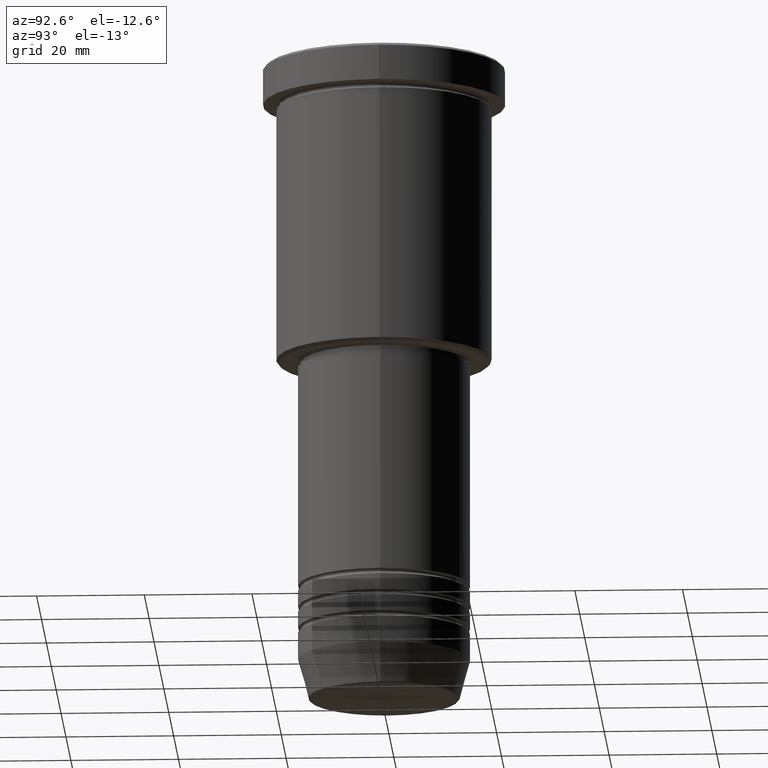
[diagram: clean part render]
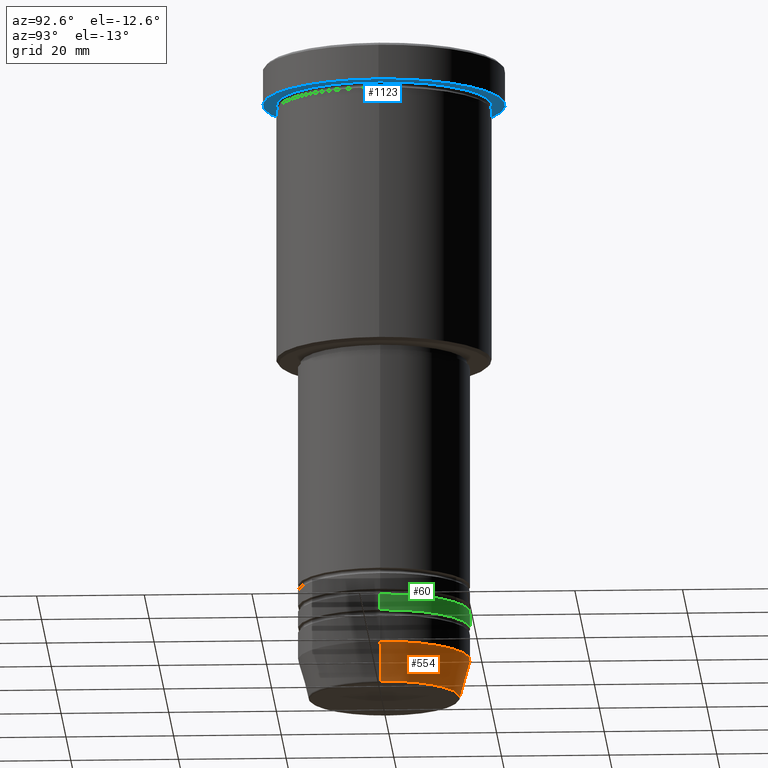
[diagram: same view with three faces highlighted in distinct colors, each labeled with its STEP entity id]
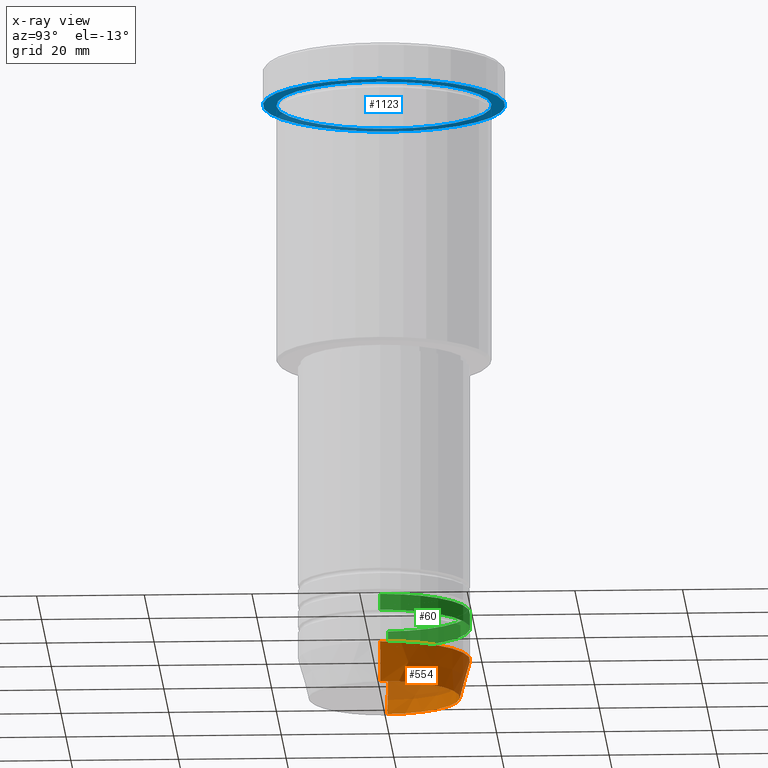
[diagram: x-ray of the same camera — body ghosted, the three highlighted faces saturated]
A machine part, auxiliary view with three faces highlighted in distinct colors.
The next image is the same camera in x-ray (body ghosted, the three faces saturated) — at least one of them is partly hidden behind the body in this view.
Their STEP definitions:

[orange] entity #554 — the highlighted conical surface has half-angle 15 deg.
#25 = CARTESIAN_POINT ( 'NONE',  ( 0.000000000000000000, 0.000000000000000000, -112.4999999999999858 ) ) ;
#165 = ORIENTED_EDGE ( 'NONE', *, *, #877, .T. ) ;
#187 = AXIS2_PLACEMENT_3D ( 'NONE', #25, #544, #753 ) ;
#218 = EDGE_CURVE ( 'NONE', #585, #610, #954, .T. ) ;
#225 = CARTESIAN_POINT ( 'NONE',  ( -16.00000000000000000, 1.959434878635765131E-15, -112.4999999999999858 ) ) ;
#233 = ORIENTED_EDGE ( 'NONE', *, *, #629, .F. ) ;
#275 = CARTESIAN_POINT ( 'NONE',  ( -16.00000000000000000, 1.959434878635765131E-15, -112.4999999999999858 ) ) ;
#304 = DIRECTION ( 'NONE',  ( 1.000000000000000000, 0.000000000000000000, 0.000000000000000000 ) ) ;
#345 = FACE_OUTER_BOUND ( 'NONE', #684, .T. ) ;
#396 = DIRECTION ( 'NONE',  ( -0.000000000000000000, -0.000000000000000000, 1.000000000000000000 ) ) ;
#400 = VERTEX_POINT ( 'NONE', #939 ) ;
#413 = CARTESIAN_POINT ( 'NONE',  ( 0.000000000000000000, 0.000000000000000000, -112.4999999999999858 ) ) ;
#423 = DIRECTION ( 'NONE',  ( 1.000000000000000000, 0.000000000000000000, 0.000000000000000000 ) ) ;
#446 = AXIS2_PLACEMENT_3D ( 'NONE', #1013, #396, #304 ) ;
#523 = CARTESIAN_POINT ( 'NONE',  ( 14.08968047592162698, 0.000000000000000000, -119.6294095225512564 ) ) ;
#544 = DIRECTION ( 'NONE',  ( -0.000000000000000000, -0.000000000000000000, 1.000000000000000000 ) ) ;
#554 = ADVANCED_FACE ( 'NONE', ( #345 ), #669, .T. ) ;
#573 = VECTOR ( 'NONE', #1174, 1000.000000000000000 ) ;
#585 = VERTEX_POINT ( 'NONE', #586 ) ;
#586 = CARTESIAN_POINT ( 'NONE',  ( 16.00000000000000000, 0.000000000000000000, -112.4999999999999858 ) ) ;
#610 = VERTEX_POINT ( 'NONE', #225 ) ;
#629 = EDGE_CURVE ( 'NONE', #1000, #585, #914, .T. ) ;
#669 = CONICAL_SURFACE ( 'NONE', #747, 16.00000000000000000, 0.2617993877991500740 ) ;
#684 = EDGE_LOOP ( 'NONE', ( #165, #706, #899, #233 ) ) ;
#686 = DIRECTION ( 'NONE',  ( -0.000000000000000000, -0.000000000000000000, 1.000000000000000000 ) ) ;
#706 = ORIENTED_EDGE ( 'NONE', *, *, #1149, .T. ) ;
#709 = CIRCLE ( 'NONE', #446, 14.08968047592162698 ) ;
#719 = CARTESIAN_POINT ( 'NONE',  ( 16.00000000000000000, 0.000000000000000000, -112.4999999999999858 ) ) ;
#728 = LINE ( 'NONE', #275, #1077 ) ;
#747 = AXIS2_PLACEMENT_3D ( 'NONE', #413, #686, #423 ) ;
#753 = DIRECTION ( 'NONE',  ( 1.000000000000000000, 0.000000000000000000, 0.000000000000000000 ) ) ;
#877 = EDGE_CURVE ( 'NONE', #1000, #400, #709, .T. ) ;
#893 = DIRECTION ( 'NONE',  ( -0.2588190451025213501, 3.169619151431772337E-17, 0.9659258262890680902 ) ) ;
#899 = ORIENTED_EDGE ( 'NONE', *, *, #218, .F. ) ;
#914 = LINE ( 'NONE', #719, #573 ) ;
#939 = CARTESIAN_POINT ( 'NONE',  ( -14.08968047592162698, 1.842461544110201269E-15, -119.6294095225512564 ) ) ;
#954 = CIRCLE ( 'NONE', #187, 16.00000000000000000 ) ;
#1000 = VERTEX_POINT ( 'NONE', #523 ) ;
#1013 = CARTESIAN_POINT ( 'NONE',  ( 0.000000000000000000, 0.000000000000000000, -119.6294095225512564 ) ) ;
#1077 = VECTOR ( 'NONE', #893, 1000.000000000000000 ) ;
#1149 = EDGE_CURVE ( 'NONE', #400, #610, #728, .T. ) ;
#1174 = DIRECTION ( 'NONE',  ( 0.2588190451025213501, 0.000000000000000000, 0.9659258262890680902 ) ) ;

[blue] entity #1123 — the highlighted planar face has unit normal (0, 0, -1).
#47 = DIRECTION ( 'NONE',  ( -0.000000000000000000, -0.000000000000000000, 1.000000000000000000 ) ) ;
#55 = EDGE_LOOP ( 'NONE', ( #194, #1097 ) ) ;
#106 = EDGE_CURVE ( 'NONE', #977, #592, #349, .T. ) ;
#140 = CARTESIAN_POINT ( 'NONE',  ( 0.000000000000000000, 0.000000000000000000, -6.999999999999995559 ) ) ;
#144 = EDGE_CURVE ( 'NONE', #527, #896, #1125, .T. ) ;
#154 = CARTESIAN_POINT ( 'NONE',  ( -20.00000000000000000, 0.000000000000000000, -6.999999999999995559 ) ) ;
#162 = CARTESIAN_POINT ( 'NONE',  ( 0.000000000000000000, 22.50000000000000000, -6.999999999999995559 ) ) ;
#177 = CARTESIAN_POINT ( 'NONE',  ( 0.000000000000000000, 0.000000000000000000, -6.999999999999995559 ) ) ;
#184 = EDGE_CURVE ( 'NONE', #592, #977, #443, .T. ) ;
#194 = ORIENTED_EDGE ( 'NONE', *, *, #184, .F. ) ;
#197 = DIRECTION ( 'NONE',  ( -0.000000000000000000, -0.000000000000000000, 1.000000000000000000 ) ) ;
#201 = CARTESIAN_POINT ( 'NONE',  ( 0.000000000000000000, 0.000000000000000000, -6.999999999999995559 ) ) ;
#295 = DIRECTION ( 'NONE',  ( 1.000000000000000000, 0.000000000000000000, 0.000000000000000000 ) ) ;
#349 = CIRCLE ( 'NONE', #901, 22.50000000000000000 ) ;
#358 = ORIENTED_EDGE ( 'NONE', *, *, #1078, .T. ) ;
#443 = CIRCLE ( 'NONE', #807, 22.50000000000000000 ) ;
#452 = DIRECTION ( 'NONE',  ( -1.000000000000000000, 0.000000000000000000, 0.000000000000000000 ) ) ;
#455 = FACE_BOUND ( 'NONE', #925, .T. ) ;
#474 = DIRECTION ( 'NONE',  ( -0.000000000000000000, -0.000000000000000000, 1.000000000000000000 ) ) ;
#487 = ORIENTED_EDGE ( 'NONE', *, *, #144, .T. ) ;
#527 = VERTEX_POINT ( 'NONE', #154 ) ;
#562 = DIRECTION ( 'NONE',  ( 1.000000000000000000, 0.000000000000000000, 0.000000000000000000 ) ) ;
#578 = DIRECTION ( 'NONE',  ( -0.000000000000000000, -0.000000000000000000, 1.000000000000000000 ) ) ;
#584 = CARTESIAN_POINT ( 'NONE',  ( -22.50000000000000000, 2.755455298081544778E-15, -6.999999999999995559 ) ) ;
#592 = VERTEX_POINT ( 'NONE', #867 ) ;
#625 = DIRECTION ( 'NONE',  ( 0.000000000000000000, 0.000000000000000000, -1.000000000000000000 ) ) ;
#732 = AXIS2_PLACEMENT_3D ( 'NONE', #140, #47, #878 ) ;
#755 = CARTESIAN_POINT ( 'NONE',  ( 20.00000000000000000, 2.449293598294706513E-15, -6.999999999999995559 ) ) ;
#807 = AXIS2_PLACEMENT_3D ( 'NONE', #991, #197, #562 ) ;
#812 = CIRCLE ( 'NONE', #732, 20.00000000000000000 ) ;
#867 = CARTESIAN_POINT ( 'NONE',  ( 22.50000000000000000, 0.000000000000000000, -6.999999999999995559 ) ) ;
#878 = DIRECTION ( 'NONE',  ( -1.000000000000000000, 0.000000000000000000, 0.000000000000000000 ) ) ;
#896 = VERTEX_POINT ( 'NONE', #755 ) ;
#901 = AXIS2_PLACEMENT_3D ( 'NONE', #177, #474, #295 ) ;
#925 = EDGE_LOOP ( 'NONE', ( #487, #358 ) ) ;
#977 = VERTEX_POINT ( 'NONE', #584 ) ;
#980 = AXIS2_PLACEMENT_3D ( 'NONE', #162, #625, #1155 ) ;
#986 = PLANE ( 'NONE',  #980 ) ;
#991 = CARTESIAN_POINT ( 'NONE',  ( 0.000000000000000000, 0.000000000000000000, -6.999999999999995559 ) ) ;
#1078 = EDGE_CURVE ( 'NONE', #896, #527, #812, .T. ) ;
#1097 = ORIENTED_EDGE ( 'NONE', *, *, #106, .F. ) ;
#1123 = ADVANCED_FACE ( 'NONE', ( #455, #1177 ), #986, .T. ) ;
#1125 = CIRCLE ( 'NONE', #1142, 20.00000000000000000 ) ;
#1142 = AXIS2_PLACEMENT_3D ( 'NONE', #201, #578, #452 ) ;
#1155 = DIRECTION ( 'NONE',  ( -1.000000000000000000, 0.000000000000000000, -0.000000000000000000 ) ) ;
#1177 = FACE_OUTER_BOUND ( 'NONE', #55, .T. ) ;

[green] entity #60 — the highlighted cylindrical surface (partial cylindrical patch) has radius 16 mm, axis along (-0, -0, 1).
#2 = EDGE_CURVE ( 'NONE', #220, #222, #883, .T. ) ;
#46 = DIRECTION ( 'NONE',  ( -0.000000000000000000, -0.000000000000000000, 1.000000000000000000 ) ) ;
#60 = ADVANCED_FACE ( 'NONE', ( #987 ), #163, .T. ) ;
#107 = CARTESIAN_POINT ( 'NONE',  ( -16.00000000000000000, 1.959434878635765131E-15, -106.4999999999999716 ) ) ;
#126 = CARTESIAN_POINT ( 'NONE',  ( 0.000000000000000000, 0.000000000000000000, -103.4999999999999858 ) ) ;
#142 = DIRECTION ( 'NONE',  ( -0.000000000000000000, -0.000000000000000000, 1.000000000000000000 ) ) ;
#163 = CYLINDRICAL_SURFACE ( 'NONE', #267, 16.00000000000000000 ) ;
#220 = VERTEX_POINT ( 'NONE', #107 ) ;
#222 = VERTEX_POINT ( 'NONE', #484 ) ;
#267 = AXIS2_PLACEMENT_3D ( 'NONE', #436, #608, #1071 ) ;
#287 = VECTOR ( 'NONE', #529, 1000.000000000000000 ) ;
#292 = EDGE_CURVE ( 'NONE', #439, #220, #840, .T. ) ;
#325 = DIRECTION ( 'NONE',  ( 1.000000000000000000, 0.000000000000000000, 0.000000000000000000 ) ) ;
#332 = VECTOR ( 'NONE', #142, 1000.000000000000000 ) ;
#436 = CARTESIAN_POINT ( 'NONE',  ( 0.000000000000000000, 0.000000000000000000, 0.000000000000000000 ) ) ;
#439 = VERTEX_POINT ( 'NONE', #763 ) ;
#484 = CARTESIAN_POINT ( 'NONE',  ( -16.00000000000000000, 1.959434878635765131E-15, -103.4999999999999858 ) ) ;
#529 = DIRECTION ( 'NONE',  ( -0.000000000000000000, -0.000000000000000000, 1.000000000000000000 ) ) ;
#563 = CARTESIAN_POINT ( 'NONE',  ( 16.00000000000000000, 0.000000000000000000, -103.4999999999999858 ) ) ;
#594 = EDGE_CURVE ( 'NONE', #439, #778, #966, .T. ) ;
#608 = DIRECTION ( 'NONE',  ( -0.000000000000000000, -0.000000000000000000, 1.000000000000000000 ) ) ;
#639 = ORIENTED_EDGE ( 'NONE', *, *, #2, .T. ) ;
#646 = AXIS2_PLACEMENT_3D ( 'NONE', #1043, #46, #1141 ) ;
#710 = CIRCLE ( 'NONE', #1058, 16.00000000000000000 ) ;
#749 = ORIENTED_EDGE ( 'NONE', *, *, #1014, .F. ) ;
#763 = CARTESIAN_POINT ( 'NONE',  ( 16.00000000000000000, 0.000000000000000000, -106.4999999999999716 ) ) ;
#778 = VERTEX_POINT ( 'NONE', #563 ) ;
#791 = ORIENTED_EDGE ( 'NONE', *, *, #292, .T. ) ;
#840 = CIRCLE ( 'NONE', #646, 16.00000000000000000 ) ;
#883 = LINE ( 'NONE', #1168, #287 ) ;
#966 = LINE ( 'NONE', #1067, #332 ) ;
#987 = FACE_OUTER_BOUND ( 'NONE', #1148, .T. ) ;
#1014 = EDGE_CURVE ( 'NONE', #778, #222, #710, .T. ) ;
#1043 = CARTESIAN_POINT ( 'NONE',  ( 0.000000000000000000, 0.000000000000000000, -106.4999999999999716 ) ) ;
#1058 = AXIS2_PLACEMENT_3D ( 'NONE', #126, #1138, #325 ) ;
#1067 = CARTESIAN_POINT ( 'NONE',  ( 16.00000000000000000, 0.000000000000000000, 0.000000000000000000 ) ) ;
#1071 = DIRECTION ( 'NONE',  ( 1.000000000000000000, 0.000000000000000000, 0.000000000000000000 ) ) ;
#1132 = ORIENTED_EDGE ( 'NONE', *, *, #594, .F. ) ;
#1138 = DIRECTION ( 'NONE',  ( -0.000000000000000000, -0.000000000000000000, 1.000000000000000000 ) ) ;
#1141 = DIRECTION ( 'NONE',  ( 1.000000000000000000, 0.000000000000000000, 0.000000000000000000 ) ) ;
#1148 = EDGE_LOOP ( 'NONE', ( #791, #639, #749, #1132 ) ) ;
#1168 = CARTESIAN_POINT ( 'NONE',  ( -16.00000000000000000, 1.959434878635765131E-15, 0.000000000000000000 ) ) ;